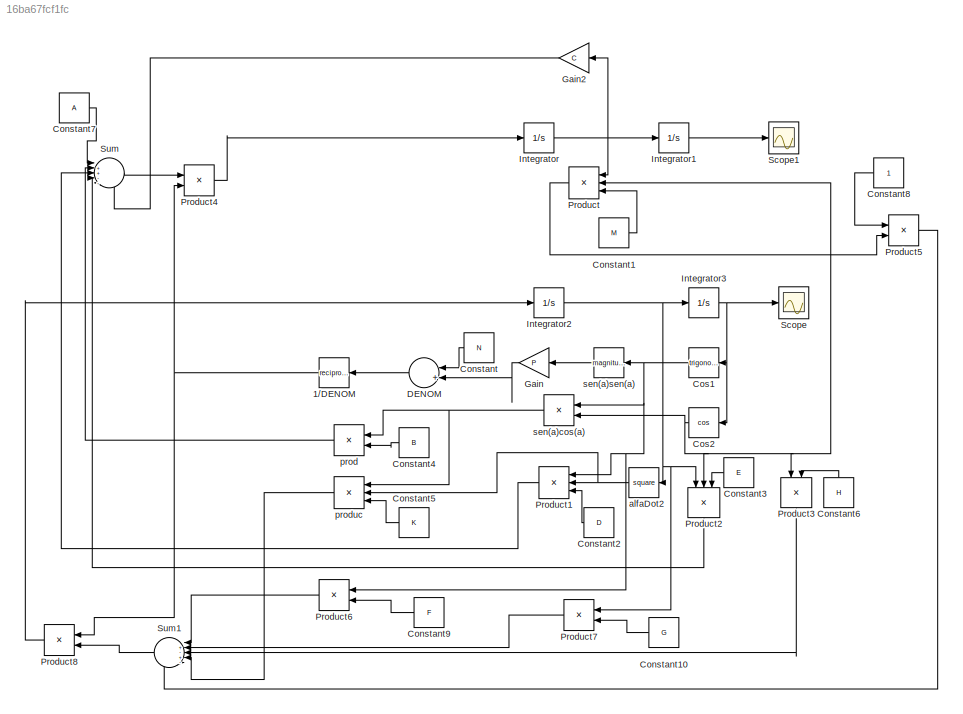
MODEL slx_16ba67fcf1fc
KIND model
CONFIG AbsTol = auto
CONFIG EnableMultiTasking = off
CONFIG FixedStep = auto
CONFIG InitFcn = Ip = 0.0079;\nMc = 0.7031;\nLp = 0.3302;\nMp = 0.23;\nFc = 0;\nBeq = 4.3;\ng = 9.81;\nBp = 0.0024;\n\n\nA = (Ip + Mp*(Lp^2))*Fc;\n\nB = (Mp^2)*(Lp^2)*g;\n\nC = (Ip + Mp*(Lp^2))*Beq;\n\nD = Ip*Mp*Lp + (Mp^2)*(Lp^3); % Se cambio signo\n\nE = Mp*Lp*Bp;\n\nF = (Mc + Mp)*Mp*g*Lp;\n\nG = (Mc + Mp)*Bp;\n\nH = Fc*Mp*Lp;\n\nK = (Mp^2)*(Lp^2);\n\nM = Beq*Mp*Lp;\n\nN = (Mc + Mp)*Ip + Mc*Mp*(Lp^2);\n\nP = (Mp^2)*(Lp^2);
CONFIG MaxStep = auto
CONFIG MinStep = auto
CONFIG PreLoadFcn = Ip = 0.0079;\nMc = 0.7031;\nLp = 0.3302;\nMp = 0.23;\nFc = 0;\nBeq = 4.3;\ng = 9.81;\nBp = 0.0024;\n\nA = (Ip + Mp*(Lp^2))*Fc;\nB = (Mp^2)*(Lp^2)*g;\nC = (Ip + Mp*(Lp^2))*Beq;\nD = Ip*Mp*Lp + (Mp^2)*(Lp^3); % Se cambio signo\nE = Mp*Lp*Bp;\nF = (Mc + Mp)*Mp*g*Lp;\nG = (Mc + Mp)*Bp;\nH = Fc*Mp*Lp;\nK = (Mp^2)*(Lp^2);\nM = Beq*Mp*Lp;\nN = (Mc + Mp)*Ip + Mc*Mp*(Lp^2);\nP = (Mp^2)*(Lp^2);\n\n
CONFIG RelTol = 1e-3
CONFIG SampleTimeConstraint = Unconstrained
CONFIG SolverName = VariableStepAuto
CONFIG StartTime = 0.0
CONFIG StopTime = 10.0
BLOCK [Math] 1//DENOM
  Operator = reciprocal
  SignedPower = on
BLOCK [Constant] Constant
  Value = N
BLOCK [Constant] Constant1
  Value = M
BLOCK [Constant] Constant10
  Value = G
BLOCK [Constant] Constant2
  Value = D
BLOCK [Constant] Constant3
  Value = E
BLOCK [Constant] Constant4
  Value = B
BLOCK [Constant] Constant5
  Value = K
BLOCK [Constant] Constant6
  NameLocation = right
  Value = H
BLOCK [Constant] Constant7
  Value = A
BLOCK [Constant] Constant8
BLOCK [Constant] Constant9
  Value = F
BLOCK [Trigonometry] Cos1
  NameLocation = top
BLOCK [Trigonometry] Cos2
  Operator = cos
BLOCK [Sum] DENOM
  Inputs = |++
  NameLocation = top
BLOCK [Gain] Gain
  Gain = P
BLOCK [Gain] Gain2
  Gain = C
BLOCK [Integrator] Integrator
BLOCK [Integrator] Integrator1
BLOCK [Integrator] Integrator2
BLOCK [Integrator] Integrator3
  InitialCondition = deg2rad(1)
BLOCK [Product] Product
  Inputs = 3
BLOCK [Product] Product1
  Inputs = 3
BLOCK [Product] Product2
  Inputs = 3
  NameLocation = right
BLOCK [Product] Product3
  NameLocation = left
BLOCK [Product] Product4
BLOCK [Product] Product5
BLOCK [Product] Product6
BLOCK [Product] Product7
BLOCK [Product] Product8
BLOCK [Scope] Scope
  ActiveDisplayYMaximum = 5.8758148420602225
  ActiveDisplayYMinimum = -0.63347576854008769
  Floating = off
  GraphicalSettings = {"Style":{"BackgroundColor":[0.14901960784313725,0.14901960784313725,0.14901960784313725],"AxesColor":[0,0,0],"LabelsColor":[1,1,1],"PreserveColors":false,"Visible":[true],"LineStyle":["-"],"LineWidth":[1.5],"BarWidth":[0.9],"LineColor":["auto"],"LineFaceAlpha":[1],"LineEdgeAlpha":[1],"Marker":["none"],"FontSize":8.5,"LineTrueColor":[[1,0.9098039215686274,0.39215686274509803]],"ChannelNames":"","D...<+1901ch>
  MultipleDisplayCache = [{"MaxYLimMag":5.8758148420602225,"MaxYLimReal":5.8758148420602225,"MinYLimMag":0,"MinYLimReal":-0.63347576854008769,"PlotAsMagnitudePhase":false,"ShowGrid":true,"ShowLegend":false,"Title":"%<SignalLabel>","YLabel":""}]
  NumInputPorts = 1
  ScopeFrameLocation = container
  WasSavedAsWebScope = on
  WindowPosition = [1.000000,41.000000,1097.000000,554.000000,]
BLOCK [Scope] Scope1
  ActiveDisplayYMaximum = 0.10920444319459102
  ActiveDisplayYMinimum = -0.11884151236554921
  DataLoggingVariableName = ScopeData1
  Floating = off
  GraphicalSettings = {"Style":{"BackgroundColor":[0.12941176470588237,0.12941176470588237,0.12941176470588237],"AxesColor":[0.07058823529411765,0.07058823529411765,0.07058823529411765],"LabelsColor":[0.8509803921568627,0.8509803921568627,0.8509803921568627],"PreserveColors":false,"Visible":[true],"LineStyle":["-"],"LineWidth":[1.5],"BarWidth":[0.9],"LineColor":["auto"],"LineFaceAlpha":[1],"LineEdgeAlpha":[1],"Marker":...<+2013ch>
  MultipleDisplayCache = [{"MaxYLimMag":0.099160361068785965,"MaxYLimReal":0.10920444319459102,"MinYLimMag":0,"MinYLimReal":-0.11884151236554921,"PlotAsMagnitudePhase":false,"ShowGrid":true,"ShowLegend":false,"Title":"%<SignalLabel>","YLabel":""}]
  NumInputPorts = 1
  ScopeFrameLocation = window
  WasSavedAsWebScope = on
  WindowPosition = [0.000000,32.000000,1097.000000,554.000000,]
BLOCK [Sum] Sum
  Inputs = |++---
BLOCK [Sum] Sum1
  Inputs = |+-+--
BLOCK [Math] alfaDot2
  Operator = square
BLOCK [Product] prod
BLOCK [Product] produc
  Inputs = 3
BLOCK [Product] sen(a)cos(a)
BLOCK [Math] sen(a)sen(a)
  NameLocation = top
  Operator = magnitude^2
NET 1//DENOM:1 -> Product4:2, Product8:1
LINE Constant10:1 -> Product7:2
LINE Constant1:1 -> Product:3
LINE Constant2:1 -> Product1:3
LINE Constant3:1 -> Product2:3
LINE Constant4:1 -> prod:2
LINE Constant5:1 -> produc:3
LINE Constant6:1 -> Product3:2
LINE Constant7:1 -> Sum:1
LINE Constant8:1 -> Product5:1
LINE Constant9:1 -> Product6:2
LINE Constant:1 -> DENOM:1
NET Cos1:1 -> Product1:1, Product6:1, sen(a)cos(a):1, sen(a)sen(a):1
NET Cos2:1 -> Product2:2, Product3:1, Product:2, sen(a)cos(a):2
LINE DENOM:1 -> 1//DENOM:1
LINE Gain2:1 -> Sum:5
LINE Gain:1 -> DENOM:2
LINE Integrator1:1 -> Scope1:1
NET Integrator2:1 -> Integrator3:1, Product2:1, Product7:1, alfaDot2:1
NET Integrator3:1 -> Cos1:1, Cos2:1, Scope:1
NET Integrator:1 -> Gain2:1, Integrator1:1, Product:1
LINE Product1:1 -> Sum:3
LINE Product2:1 -> Sum:4
LINE Product3:1 -> Sum1:3
LINE Product4:1 -> Integrator:1
LINE Product5:1 -> Sum1:5
LINE Product6:1 -> Sum1:1
LINE Product7:1 -> Sum1:2
LINE Product8:1 -> Integrator2:1
LINE Product:1 -> Product5:2
LINE Sum1:1 -> Product8:2
LINE Sum:1 -> Product4:1
NET alfaDot2:1 -> Product1:2, produc:2
LINE prod:1 -> Sum:2
LINE produc:1 -> Sum1:4
NET sen(a)cos(a):1 -> prod:1, produc:1
LINE sen(a)sen(a):1 -> Gain:1
note: NET lines group one-source signal fan-out (src -> all destinations, sorted); 1:1 wires keep LINE
